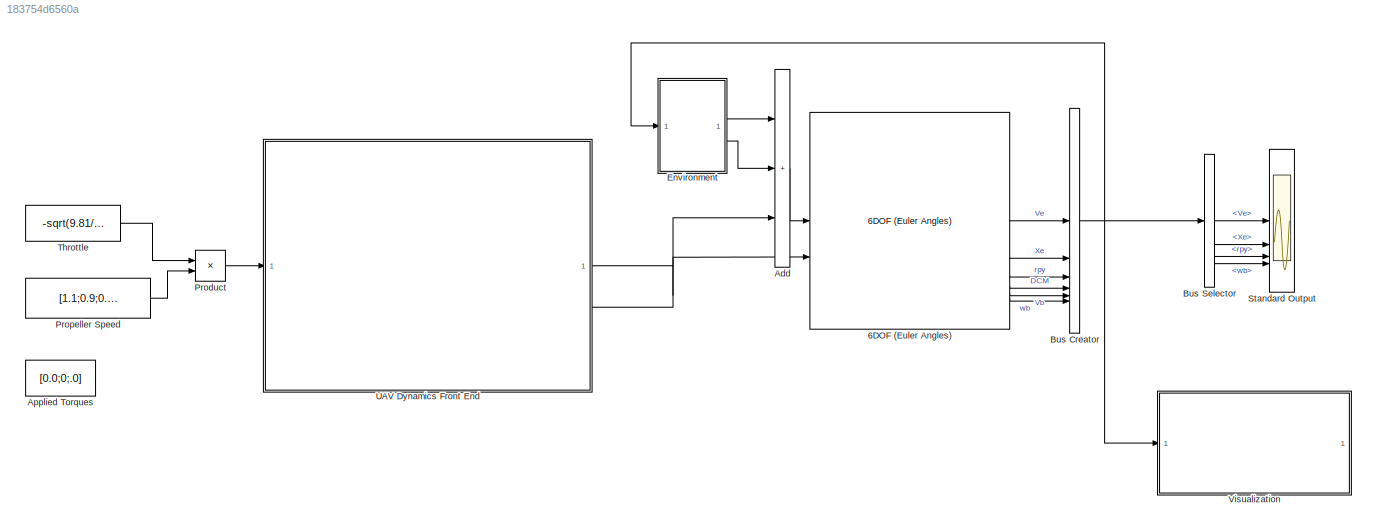
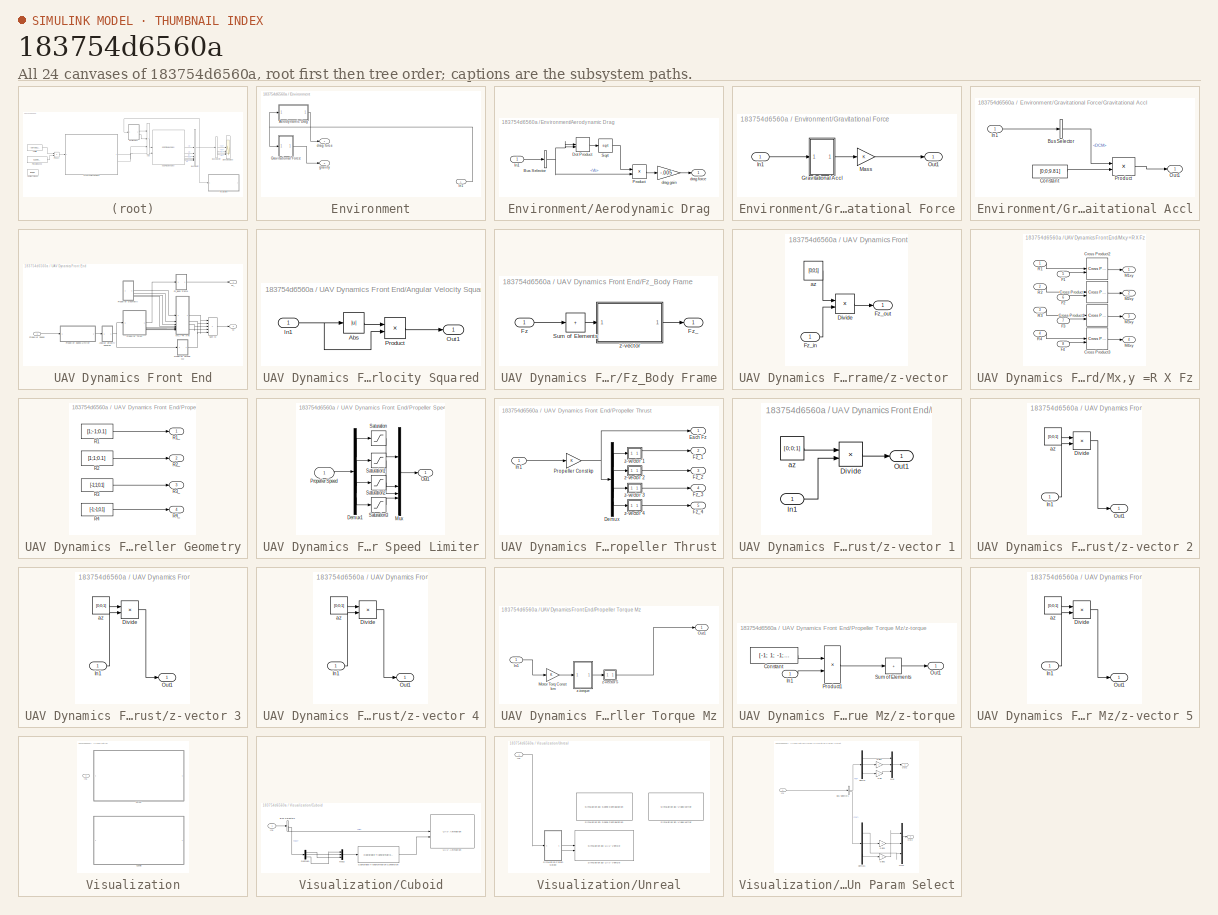
[diagram: thumbnail index - all 24 canvases of the model, root first then tree order]
MODEL slx_183754d6560a
KIND model
CONFIG AbsTol = auto
CONFIG EnableMultiTasking = off
CONFIG FixedStep = auto
CONFIG MaxStep = auto
CONFIG MinStep = auto
CONFIG RelTol = 1e-3
CONFIG SampleTimeConstraint = Unconstrained
CONFIG SolverName = VariableStepAuto
CONFIG StartTime = 0.0
CONFIG StopTime = 10.0
BLOCK [Reference] 6DOF (Euler Angles)  REF=shared6dof/6DOF (Euler Angles)
  LibrarySourceBlock = aerolib6dof2/6DOF (Euler Angles)
  SourceBlock = shared6dof/6DOF (Euler Angles)
  Vm_statename = ''
  aMode = 0
  eul_statename = ''
  mass_f = 2.0
  mass_statename = ''
  pm_statename = ''
  rep = Euler Angles
  vre_flag = on
  xme_statename = ''
BLOCK [Sum] Add
  IconShape = rectangular
  Inputs = +++
BLOCK [Constant] Applied Torques
  Value = [0.0;0;.0]
BLOCK [BusCreator] Bus Creator
  DisplayOption = bar
  InheritFromInputs = on
  Inputs = 6
BLOCK [BusSelector] Bus Selector
  OutputSignals = Ve,Xe,rpy,wb
BLOCK [SubSystem] Environment
BLOCK [SubSystem] Environment/Aerodynamic Drag
BLOCK [BusSelector] Environment/Aerodynamic Drag/Bus Selector
  OutputSignals = Vb
BLOCK [DotProduct] Environment/Aerodynamic Drag/Dot Product
  OutDataTypeStr = Inherit: Inherit via internal rule
BLOCK [Inport] Environment/Aerodynamic Drag/In1
BLOCK [Product] Environment/Aerodynamic Drag/Product
BLOCK [Sqrt] Environment/Aerodynamic Drag/Sqrt
BLOCK [Outport] Environment/Aerodynamic Drag/drag force
BLOCK [Gain] Environment/Aerodynamic Drag/drag gain
  Gain = -.005
BLOCK [SubSystem] Environment/Gravitational Force
BLOCK [SubSystem] Environment/Gravitational Force/Gravitational Accl
BLOCK [BusSelector] Environment/Gravitational Force/Gravitational Accl/Bus Selector
  OutputSignals = DCM
BLOCK [Constant] Environment/Gravitational Force/Gravitational Accl/Constant
  Value = [0;0;9.81]
BLOCK [Inport] Environment/Gravitational Force/Gravitational Accl/In1
BLOCK [Outport] Environment/Gravitational Force/Gravitational Accl/Out1
BLOCK [Product] Environment/Gravitational Force/Gravitational Accl/Product
  Multiplication = Matrix(*)
BLOCK [Inport] Environment/Gravitational Force/In1
BLOCK [Gain] Environment/Gravitational Force/Mass
BLOCK [Outport] Environment/Gravitational Force/Out1
BLOCK [Inport] Environment/In1
BLOCK [Outport] Environment/drag force
BLOCK [Outport] Environment/gravity
  Port = 2
BLOCK [Product] Product
BLOCK [Constant] Propeller Speed
  Value = [1.1;0.9;0.9;1.1]
BLOCK [Scope] Standard Output
  Floating = off
  NumInputPorts = 4
  ScopeSpecificationString = Simulink.scopes.TimeScopeBlockCfg('CurrentConfiguration', extmgr.ConfigurationSet(extmgr.Configuration('Core','General UI',true,'DisplayFullSourceName',false,'ShowMainToolbar',true),extmgr.Configuration('Sources','WiredSimulink',true,'DataLogging',false,'DataLoggingVariableName','ScopeData','DataLoggingLimitDataPoints',false,'DataLoggingMaxPoints','5000','DataLoggingDecimateData',false,'DataLoggin...<+4338ch>
BLOCK [Constant] Throttle
  Value = -sqrt(9.81/4)
BLOCK [SubSystem] UAV Dynamics Front End
BLOCK [SubSystem] UAV Dynamics Front End/Angular Velocity Squared
BLOCK [Abs] UAV Dynamics Front End/Angular Velocity Squared/Abs
  SaturateOnIntegerOverflow = off
BLOCK [Inport] UAV Dynamics Front End/Angular Velocity Squared/In1
BLOCK [Outport] UAV Dynamics Front End/Angular Velocity Squared/Out1
BLOCK [Product] UAV Dynamics Front End/Angular Velocity Squared/Product
BLOCK [Outport] UAV Dynamics Front End/Fz_
BLOCK [SubSystem] UAV Dynamics Front End/Fz_Body Frame
BLOCK [Inport] UAV Dynamics Front End/Fz_Body Frame/Fz
BLOCK [Outport] UAV Dynamics Front End/Fz_Body Frame/Fz_
BLOCK [Sum] UAV Dynamics Front End/Fz_Body Frame/Sum of Elements
  IconShape = rectangular
  Inputs = +
BLOCK [SubSystem] UAV Dynamics Front End/Fz_Body Frame/z-vector 
BLOCK [Product] UAV Dynamics Front End/Fz_Body Frame/z-vector /Divide
  Inputs = **
BLOCK [Inport] UAV Dynamics Front End/Fz_Body Frame/z-vector /Fz_in
BLOCK [Outport] UAV Dynamics Front End/Fz_Body Frame/z-vector /Fz_out
BLOCK [Constant] UAV Dynamics Front End/Fz_Body Frame/z-vector /az
  Value = [0;0;1]
BLOCK [Outport] UAV Dynamics Front End/M
  Port = 2
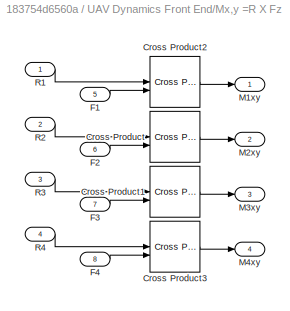
BLOCK [SubSystem] UAV Dynamics Front End/Mx,y =R X Fz
BLOCK [Reference] UAV Dynamics Front End/Mx,y =R X Fz/Cross Product  REF=matrix_library/Cross Product
  SourceBlock = matrix_library/Cross Product
  SourceType = CrossProduct
BLOCK [Reference] UAV Dynamics Front End/Mx,y =R X Fz/Cross Product1  REF=matrix_library/Cross Product
  SourceBlock = matrix_library/Cross Product
  SourceType = CrossProduct
BLOCK [Reference] UAV Dynamics Front End/Mx,y =R X Fz/Cross Product2  REF=matrix_library/Cross Product
  SourceBlock = matrix_library/Cross Product
  SourceType = CrossProduct
BLOCK [Reference] UAV Dynamics Front End/Mx,y =R X Fz/Cross Product3  REF=matrix_library/Cross Product
  SourceBlock = matrix_library/Cross Product
  SourceType = CrossProduct
BLOCK [Inport] UAV Dynamics Front End/Mx,y =R X Fz/F1
  Port = 5
BLOCK [Inport] UAV Dynamics Front End/Mx,y =R X Fz/F2
  Port = 6
BLOCK [Inport] UAV Dynamics Front End/Mx,y =R X Fz/F3
  Port = 7
BLOCK [Inport] UAV Dynamics Front End/Mx,y =R X Fz/F4
  Port = 8
BLOCK [Outport] UAV Dynamics Front End/Mx,y =R X Fz/M1xy
BLOCK [Outport] UAV Dynamics Front End/Mx,y =R X Fz/M2xy
  Port = 2
BLOCK [Outport] UAV Dynamics Front End/Mx,y =R X Fz/M3xy
  Port = 3
BLOCK [Outport] UAV Dynamics Front End/Mx,y =R X Fz/M4xy
  Port = 4
BLOCK [Inport] UAV Dynamics Front End/Mx,y =R X Fz/R1
BLOCK [Inport] UAV Dynamics Front End/Mx,y =R X Fz/R2
  Port = 2
BLOCK [Inport] UAV Dynamics Front End/Mx,y =R X Fz/R3
  Port = 3
BLOCK [Inport] UAV Dynamics Front End/Mx,y =R X Fz/R4
  Port = 4
BLOCK [SubSystem] UAV Dynamics Front End/Propeller Geometry
BLOCK [Constant] UAV Dynamics Front End/Propeller Geometry/R1
  Value = [1;-1;0.1]
BLOCK [Outport] UAV Dynamics Front End/Propeller Geometry/R1_
BLOCK [Constant] UAV Dynamics Front End/Propeller Geometry/R2
  Value = [1;1;0.1]
BLOCK [Outport] UAV Dynamics Front End/Propeller Geometry/R2_
  Port = 2
BLOCK [Constant] UAV Dynamics Front End/Propeller Geometry/R3
  Value = [-1;1;0.1]
BLOCK [Outport] UAV Dynamics Front End/Propeller Geometry/R3_
  Port = 3
BLOCK [Constant] UAV Dynamics Front End/Propeller Geometry/R4
  Value = [-1;-1;0.1]
BLOCK [Outport] UAV Dynamics Front End/Propeller Geometry/R4_
  Port = 4
BLOCK [Inport] UAV Dynamics Front End/Propeller Speed
BLOCK [SubSystem] UAV Dynamics Front End/Propeller Speed Limiter
BLOCK [Demux] UAV Dynamics Front End/Propeller Speed Limiter/Demux1
BLOCK [Mux] UAV Dynamics Front End/Propeller Speed Limiter/Mux
  DisplayOption = bar
BLOCK [Outport] UAV Dynamics Front End/Propeller Speed Limiter/Out1
BLOCK [Inport] UAV Dynamics Front End/Propeller Speed Limiter/Propeller Speed
BLOCK [Saturate] UAV Dynamics Front End/Propeller Speed Limiter/Saturation
  LowerLimit = -300
  UpperLimit = 300
BLOCK [Saturate] UAV Dynamics Front End/Propeller Speed Limiter/Saturation1
  LowerLimit = -300
  UpperLimit = 300
BLOCK [Saturate] UAV Dynamics Front End/Propeller Speed Limiter/Saturation2
  LowerLimit = -300
  UpperLimit = 300
BLOCK [Saturate] UAV Dynamics Front End/Propeller Speed Limiter/Saturation3
  LowerLimit = -300
  UpperLimit = 300
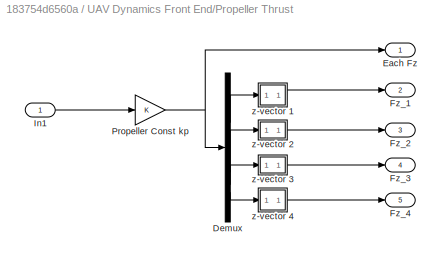
BLOCK [SubSystem] UAV Dynamics Front End/Propeller Thrust
BLOCK [Demux] UAV Dynamics Front End/Propeller Thrust/Demux
BLOCK [Outport] UAV Dynamics Front End/Propeller Thrust/Each Fz
BLOCK [Outport] UAV Dynamics Front End/Propeller Thrust/Fz_1
  Port = 2
BLOCK [Outport] UAV Dynamics Front End/Propeller Thrust/Fz_2
  Port = 3
BLOCK [Outport] UAV Dynamics Front End/Propeller Thrust/Fz_3
  Port = 4
BLOCK [Outport] UAV Dynamics Front End/Propeller Thrust/Fz_4
  Port = 5
BLOCK [Inport] UAV Dynamics Front End/Propeller Thrust/In1
BLOCK [Gain] UAV Dynamics Front End/Propeller Thrust/Propeller Const kp
BLOCK [SubSystem] UAV Dynamics Front End/Propeller Thrust/z-vector 1
BLOCK [Product] UAV Dynamics Front End/Propeller Thrust/z-vector 1/Divide
  Inputs = **
BLOCK [Inport] UAV Dynamics Front End/Propeller Thrust/z-vector 1/In1
BLOCK [Outport] UAV Dynamics Front End/Propeller Thrust/z-vector 1/Out1
BLOCK [Constant] UAV Dynamics Front End/Propeller Thrust/z-vector 1/az
  Value = [0;0;1]
BLOCK [SubSystem] UAV Dynamics Front End/Propeller Thrust/z-vector 2
BLOCK [Product] UAV Dynamics Front End/Propeller Thrust/z-vector 2/Divide
  Inputs = **
BLOCK [Inport] UAV Dynamics Front End/Propeller Thrust/z-vector 2/In1
BLOCK [Outport] UAV Dynamics Front End/Propeller Thrust/z-vector 2/Out1
BLOCK [Constant] UAV Dynamics Front End/Propeller Thrust/z-vector 2/az
  Value = [0;0;1]
BLOCK [SubSystem] UAV Dynamics Front End/Propeller Thrust/z-vector 3
BLOCK [Product] UAV Dynamics Front End/Propeller Thrust/z-vector 3/Divide
  Inputs = **
BLOCK [Inport] UAV Dynamics Front End/Propeller Thrust/z-vector 3/In1
BLOCK [Outport] UAV Dynamics Front End/Propeller Thrust/z-vector 3/Out1
BLOCK [Constant] UAV Dynamics Front End/Propeller Thrust/z-vector 3/az
  Value = [0;0;1]
BLOCK [SubSystem] UAV Dynamics Front End/Propeller Thrust/z-vector 4
BLOCK [Product] UAV Dynamics Front End/Propeller Thrust/z-vector 4/Divide
  Inputs = **
BLOCK [Inport] UAV Dynamics Front End/Propeller Thrust/z-vector 4/In1
BLOCK [Outport] UAV Dynamics Front End/Propeller Thrust/z-vector 4/Out1
BLOCK [Constant] UAV Dynamics Front End/Propeller Thrust/z-vector 4/az
  Value = [0;0;1]
BLOCK [SubSystem] UAV Dynamics Front End/Propeller Torque Mz
BLOCK [Inport] UAV Dynamics Front End/Propeller Torque Mz/In1
BLOCK [Gain] UAV Dynamics Front End/Propeller Torque Mz/Motor Torq Const km
BLOCK [Outport] UAV Dynamics Front End/Propeller Torque Mz/Out1
BLOCK [SubSystem] UAV Dynamics Front End/Propeller Torque Mz/z-torque
BLOCK [Constant] UAV Dynamics Front End/Propeller Torque Mz/z-torque/Constant
  Value = [-1; 1; -1; 1]
BLOCK [Inport] UAV Dynamics Front End/Propeller Torque Mz/z-torque/In1
BLOCK [Outport] UAV Dynamics Front End/Propeller Torque Mz/z-torque/Out1
BLOCK [Product] UAV Dynamics Front End/Propeller Torque Mz/z-torque/Product1
BLOCK [Sum] UAV Dynamics Front End/Propeller Torque Mz/z-torque/Sum of Elements
  IconShape = rectangular
  Inputs = +
BLOCK [SubSystem] UAV Dynamics Front End/Propeller Torque Mz/z-vector 5
BLOCK [Product] UAV Dynamics Front End/Propeller Torque Mz/z-vector 5/Divide
  Inputs = **
BLOCK [Inport] UAV Dynamics Front End/Propeller Torque Mz/z-vector 5/In1
BLOCK [Outport] UAV Dynamics Front End/Propeller Torque Mz/z-vector 5/Out1
BLOCK [Constant] UAV Dynamics Front End/Propeller Torque Mz/z-vector 5/az
  Value = [0;0;1]
BLOCK [Sum] UAV Dynamics Front End/Sum M
  IconShape = rectangular
  Inputs = +++++
BLOCK [SubSystem] Visualization
  LabelModeActiveChoice = Subsystem
  Variant = on
  VariantControlMode = label
BLOCK [SubSystem] Visualization/Cuboid
  VariantControl = Subsystem1
BLOCK [BusSelector] Visualization/Cuboid/Bus Selector1
  OutputSignals = Xe,rpy
BLOCK [Reference] Visualization/Cuboid/Coordinate Transformation Conversion  REF=robotcorelib/Coordinate Transformation Conversion
  SourceBlock = robotcorelib/Coordinate Transformation Conversion
  SourceType = robotics.slcore.internal.block.CoordinateTransformationConversion
BLOCK [Demux] Visualization/Cuboid/Demux1
  Outputs = 3
BLOCK [Inport] Visualization/Cuboid/In1
BLOCK [Mux] Visualization/Cuboid/Mux2
  DisplayOption = bar
  Inputs = 3
BLOCK [Reference] Visualization/Cuboid/UAV Animation  REF=uavutilslib/UAV Animation
  SourceBlock = uavutilslib/UAV Animation
  SourceType = uav.sluav.internal.system.UAVAnimation
BLOCK [Inport] Visualization/In1
BLOCK [SubSystem] Visualization/Unreal
  VariantControl = Subsystem
BLOCK [Inport] Visualization/Unreal/In1
BLOCK [Reference] Visualization/Unreal/Simulation 3D Scene Configuration  REF=sim3dlib/Simulation 3D Scene Configuration
  LibrarySourceBlock = uavsim3dlib/Simulation 3D Scene Configuration
  Priority = 0
  SourceBlock = sim3dlib/Simulation 3D Scene Configuration
  SourceType = Simulation 3D Scene Configuration
BLOCK [Reference] Visualization/Unreal/Simulation 3D UAV Vehicle  REF=uavsim3dlib/Simulation 3D UAV Vehicle
  Priority = -1
  SourceBlock = uavsim3dlib/Simulation 3D UAV Vehicle
  SourceType = Simulation 3D UAV Vehicle
BLOCK [Reference] Visualization/Unreal/Simulation 3D Video Writer  REF=sim3dlib/Simulation 3D Video Writer
  Commented = on
  LibrarySourceBlock = sl3dlib/Simulation 3D/Utilities/Simulation 3D Video Writer
  Priority = 1
  SourceBlock = sim3dlib/Simulation 3D Video Writer
  SourceType = Simulation3DVideoWriterSystem
BLOCK [SubSystem] Visualization/Unreal/Simulation Param Select
BLOCK [BusSelector] Visualization/Unreal/Simulation Param Select/Bus Selector1
  OutputSignals = Xe,rpy
BLOCK [Demux] Visualization/Unreal/Simulation Param Select/Demux
  Outputs = 3
BLOCK [Demux] Visualization/Unreal/Simulation Param Select/Demux1
  Outputs = 3
BLOCK [Gain] Visualization/Unreal/Simulation Param Select/Gain
  Gain = -1
BLOCK [Gain] Visualization/Unreal/Simulation Param Select/Gain1
  Gain = -1
BLOCK [Gain] Visualization/Unreal/Simulation Param Select/Gain2
  Gain = -1
BLOCK [Gain] Visualization/Unreal/Simulation Param Select/Gain3
  Gain = -1
BLOCK [Inport] Visualization/Unreal/Simulation Param Select/In1
BLOCK [Mux] Visualization/Unreal/Simulation Param Select/Mux
  DisplayOption = bar
  Inputs = 3
BLOCK [Mux] Visualization/Unreal/Simulation Param Select/Mux1
  DisplayOption = bar
  Inputs = 3
BLOCK [Outport] Visualization/Unreal/Simulation Param Select/Out1
BLOCK [Outport] Visualization/Unreal/Simulation Param Select/Out2
  Port = 2
LINE 6DOF (Euler Angles):1 -> Bus Creator:1
LINE 6DOF (Euler Angles):2 -> Bus Creator:2
LINE 6DOF (Euler Angles):3 -> Bus Creator:3
LINE 6DOF (Euler Angles):4 -> Bus Creator:4
LINE 6DOF (Euler Angles):5 -> Bus Creator:5
LINE 6DOF (Euler Angles):6 -> Bus Creator:6
LINE Add:1 -> 6DOF (Euler Angles):1
NET Bus Creator:1 -> Bus Selector:1, Environment:1, Visualization:1
LINE Bus Selector:1 -> Standard Output:1
LINE Bus Selector:2 -> Standard Output:2
LINE Bus Selector:3 -> Standard Output:3
LINE Bus Selector:4 -> Standard Output:4
NET Environment/Aerodynamic Drag/Bus Selector:1 -> Environment/Aerodynamic Drag/Dot Product:1, Environment/Aerodynamic Drag/Dot Product:2, Environment/Aerodynamic Drag/Product:2
LINE Environment/Aerodynamic Drag/Dot Product:1 -> Environment/Aerodynamic Drag/Sqrt:1
LINE Environment/Aerodynamic Drag/In1:1 -> Environment/Aerodynamic Drag/Bus Selector:1
LINE Environment/Aerodynamic Drag/Product:1 -> Environment/Aerodynamic Drag/drag gain:1
LINE Environment/Aerodynamic Drag/Sqrt:1 -> Environment/Aerodynamic Drag/Product:1
LINE Environment/Aerodynamic Drag/drag gain:1 -> Environment/Aerodynamic Drag/drag force:1
LINE Environment/Aerodynamic Drag:1 -> Environment/drag force:1
LINE Environment/Gravitational Force/Gravitational Accl/Bus Selector:1 -> Environment/Gravitational Force/Gravitational Accl/Product:1
LINE Environment/Gravitational Force/Gravitational Accl/Constant:1 -> Environment/Gravitational Force/Gravitational Accl/Product:2
LINE Environment/Gravitational Force/Gravitational Accl/In1:1 -> Environment/Gravitational Force/Gravitational Accl/Bus Selector:1
LINE Environment/Gravitational Force/Gravitational Accl/Product:1 -> Environment/Gravitational Force/Gravitational Accl/Out1:1
LINE Environment/Gravitational Force/Gravitational Accl:1 -> Environment/Gravitational Force/Mass:1
LINE Environment/Gravitational Force/In1:1 -> Environment/Gravitational Force/Gravitational Accl:1
LINE Environment/Gravitational Force/Mass:1 -> Environment/Gravitational Force/Out1:1
LINE Environment/Gravitational Force:1 -> Environment/gravity:1
NET Environment/In1:1 -> Environment/Aerodynamic Drag:1, Environment/Gravitational Force:1
LINE Environment:1 -> Add:1
LINE Environment:2 -> Add:2
LINE Product:1 -> UAV Dynamics Front End:1
LINE Propeller Speed:1 -> Product:2
LINE Throttle:1 -> Product:1
LINE UAV Dynamics Front End/Angular Velocity Squared/Abs:1 -> UAV Dynamics Front End/Angular Velocity Squared/Product:1
NET UAV Dynamics Front End/Angular Velocity Squared/In1:1 -> UAV Dynamics Front End/Angular Velocity Squared/Abs:1, UAV Dynamics Front End/Angular Velocity Squared/Product:2
LINE UAV Dynamics Front End/Angular Velocity Squared/Product:1 -> UAV Dynamics Front End/Angular Velocity Squared/Out1:1
NET UAV Dynamics Front End/Angular Velocity Squared:1 -> UAV Dynamics Front End/Propeller Thrust:1, UAV Dynamics Front End/Propeller Torque Mz:1
LINE UAV Dynamics Front End/Fz_Body Frame/Fz:1 -> UAV Dynamics Front End/Fz_Body Frame/Sum of Elements:1
LINE UAV Dynamics Front End/Fz_Body Frame/Sum of Elements:1 -> UAV Dynamics Front End/Fz_Body Frame/z-vector :1
LINE UAV Dynamics Front End/Fz_Body Frame/z-vector /Divide:1 -> UAV Dynamics Front End/Fz_Body Frame/z-vector /Fz_out:1
LINE UAV Dynamics Front End/Fz_Body Frame/z-vector /Fz_in:1 -> UAV Dynamics Front End/Fz_Body Frame/z-vector /Divide:2
LINE UAV Dynamics Front End/Fz_Body Frame/z-vector /az:1 -> UAV Dynamics Front End/Fz_Body Frame/z-vector /Divide:1
LINE UAV Dynamics Front End/Fz_Body Frame/z-vector :1 -> UAV Dynamics Front End/Fz_Body Frame/Fz_:1
LINE UAV Dynamics Front End/Fz_Body Frame:1 -> UAV Dynamics Front End/Fz_:1
LINE UAV Dynamics Front End/Mx,y =R X Fz/Cross Product1:1 -> UAV Dynamics Front End/Mx,y =R X Fz/M3xy:1
LINE UAV Dynamics Front End/Mx,y =R X Fz/Cross Product2:1 -> UAV Dynamics Front End/Mx,y =R X Fz/M1xy:1
LINE UAV Dynamics Front End/Mx,y =R X Fz/Cross Product3:1 -> UAV Dynamics Front End/Mx,y =R X Fz/M4xy:1
LINE UAV Dynamics Front End/Mx,y =R X Fz/Cross Product:1 -> UAV Dynamics Front End/Mx,y =R X Fz/M2xy:1
LINE UAV Dynamics Front End/Mx,y =R X Fz/F1:1 -> UAV Dynamics Front End/Mx,y =R X Fz/Cross Product2:2
LINE UAV Dynamics Front End/Mx,y =R X Fz/F2:1 -> UAV Dynamics Front End/Mx,y =R X Fz/Cross Product:2
LINE UAV Dynamics Front End/Mx,y =R X Fz/F3:1 -> UAV Dynamics Front End/Mx,y =R X Fz/Cross Product1:2
LINE UAV Dynamics Front End/Mx,y =R X Fz/F4:1 -> UAV Dynamics Front End/Mx,y =R X Fz/Cross Product3:2
LINE UAV Dynamics Front End/Mx,y =R X Fz/R1:1 -> UAV Dynamics Front End/Mx,y =R X Fz/Cross Product2:1
LINE UAV Dynamics Front End/Mx,y =R X Fz/R2:1 -> UAV Dynamics Front End/Mx,y =R X Fz/Cross Product:1
LINE UAV Dynamics Front End/Mx,y =R X Fz/R3:1 -> UAV Dynamics Front End/Mx,y =R X Fz/Cross Product1:1
LINE UAV Dynamics Front End/Mx,y =R X Fz/R4:1 -> UAV Dynamics Front End/Mx,y =R X Fz/Cross Product3:1
LINE UAV Dynamics Front End/Mx,y =R X Fz:1 -> UAV Dynamics Front End/Sum M:1
LINE UAV Dynamics Front End/Mx,y =R X Fz:2 -> UAV Dynamics Front End/Sum M:2
LINE UAV Dynamics Front End/Mx,y =R X Fz:3 -> UAV Dynamics Front End/Sum M:3
LINE UAV Dynamics Front End/Mx,y =R X Fz:4 -> UAV Dynamics Front End/Sum M:4
LINE UAV Dynamics Front End/Propeller Geometry/R1:1 -> UAV Dynamics Front End/Propeller Geometry/R1_:1
LINE UAV Dynamics Front End/Propeller Geometry/R2:1 -> UAV Dynamics Front End/Propeller Geometry/R2_:1
LINE UAV Dynamics Front End/Propeller Geometry/R3:1 -> UAV Dynamics Front End/Propeller Geometry/R3_:1
LINE UAV Dynamics Front End/Propeller Geometry/R4:1 -> UAV Dynamics Front End/Propeller Geometry/R4_:1
LINE UAV Dynamics Front End/Propeller Geometry:1 -> UAV Dynamics Front End/Mx,y =R X Fz:1
LINE UAV Dynamics Front End/Propeller Geometry:2 -> UAV Dynamics Front End/Mx,y =R X Fz:2
LINE UAV Dynamics Front End/Propeller Geometry:3 -> UAV Dynamics Front End/Mx,y =R X Fz:3
LINE UAV Dynamics Front End/Propeller Geometry:4 -> UAV Dynamics Front End/Mx,y =R X Fz:4
LINE UAV Dynamics Front End/Propeller Speed Limiter/Demux1:1 -> UAV Dynamics Front End/Propeller Speed Limiter/Saturation:1
LINE UAV Dynamics Front End/Propeller Speed Limiter/Demux1:2 -> UAV Dynamics Front End/Propeller Speed Limiter/Saturation1:1
LINE UAV Dynamics Front End/Propeller Speed Limiter/Demux1:3 -> UAV Dynamics Front End/Propeller Speed Limiter/Saturation2:1
LINE UAV Dynamics Front End/Propeller Speed Limiter/Demux1:4 -> UAV Dynamics Front End/Propeller Speed Limiter/Saturation3:1
LINE UAV Dynamics Front End/Propeller Speed Limiter/Mux:1 -> UAV Dynamics Front End/Propeller Speed Limiter/Out1:1
LINE UAV Dynamics Front End/Propeller Speed Limiter/Propeller Speed:1 -> UAV Dynamics Front End/Propeller Speed Limiter/Demux1:1
LINE UAV Dynamics Front End/Propeller Speed Limiter/Saturation1:1 -> UAV Dynamics Front End/Propeller Speed Limiter/Mux:2
LINE UAV Dynamics Front End/Propeller Speed Limiter/Saturation2:1 -> UAV Dynamics Front End/Propeller Speed Limiter/Mux:3
LINE UAV Dynamics Front End/Propeller Speed Limiter/Saturation3:1 -> UAV Dynamics Front End/Propeller Speed Limiter/Mux:4
LINE UAV Dynamics Front End/Propeller Speed Limiter/Saturation:1 -> UAV Dynamics Front End/Propeller Speed Limiter/Mux:1
LINE UAV Dynamics Front End/Propeller Speed Limiter:1 -> UAV Dynamics Front End/Angular Velocity Squared:1
LINE UAV Dynamics Front End/Propeller Speed:1 -> UAV Dynamics Front End/Propeller Speed Limiter:1
LINE UAV Dynamics Front End/Propeller Thrust/Demux:1 -> UAV Dynamics Front End/Propeller Thrust/z-vector 1:1
LINE UAV Dynamics Front End/Propeller Thrust/Demux:2 -> UAV Dynamics Front End/Propeller Thrust/z-vector 2:1
LINE UAV Dynamics Front End/Propeller Thrust/Demux:3 -> UAV Dynamics Front End/Propeller Thrust/z-vector 3:1
LINE UAV Dynamics Front End/Propeller Thrust/Demux:4 -> UAV Dynamics Front End/Propeller Thrust/z-vector 4:1
LINE UAV Dynamics Front End/Propeller Thrust/In1:1 -> UAV Dynamics Front End/Propeller Thrust/Propeller Const kp:1
NET UAV Dynamics Front End/Propeller Thrust/Propeller Const kp:1 -> UAV Dynamics Front End/Propeller Thrust/Demux:1, UAV Dynamics Front End/Propeller Thrust/Each Fz:1
LINE UAV Dynamics Front End/Propeller Thrust/z-vector 1/Divide:1 -> UAV Dynamics Front End/Propeller Thrust/z-vector 1/Out1:1
LINE UAV Dynamics Front End/Propeller Thrust/z-vector 1/In1:1 -> UAV Dynamics Front End/Propeller Thrust/z-vector 1/Divide:2
LINE UAV Dynamics Front End/Propeller Thrust/z-vector 1/az:1 -> UAV Dynamics Front End/Propeller Thrust/z-vector 1/Divide:1
LINE UAV Dynamics Front End/Propeller Thrust/z-vector 1:1 -> UAV Dynamics Front End/Propeller Thrust/Fz_1:1
LINE UAV Dynamics Front End/Propeller Thrust/z-vector 2/Divide:1 -> UAV Dynamics Front End/Propeller Thrust/z-vector 2/Out1:1
LINE UAV Dynamics Front End/Propeller Thrust/z-vector 2/In1:1 -> UAV Dynamics Front End/Propeller Thrust/z-vector 2/Divide:2
LINE UAV Dynamics Front End/Propeller Thrust/z-vector 2/az:1 -> UAV Dynamics Front End/Propeller Thrust/z-vector 2/Divide:1
LINE UAV Dynamics Front End/Propeller Thrust/z-vector 2:1 -> UAV Dynamics Front End/Propeller Thrust/Fz_2:1
LINE UAV Dynamics Front End/Propeller Thrust/z-vector 3/Divide:1 -> UAV Dynamics Front End/Propeller Thrust/z-vector 3/Out1:1
LINE UAV Dynamics Front End/Propeller Thrust/z-vector 3/In1:1 -> UAV Dynamics Front End/Propeller Thrust/z-vector 3/Divide:2
LINE UAV Dynamics Front End/Propeller Thrust/z-vector 3/az:1 -> UAV Dynamics Front End/Propeller Thrust/z-vector 3/Divide:1
LINE UAV Dynamics Front End/Propeller Thrust/z-vector 3:1 -> UAV Dynamics Front End/Propeller Thrust/Fz_3:1
LINE UAV Dynamics Front End/Propeller Thrust/z-vector 4/Divide:1 -> UAV Dynamics Front End/Propeller Thrust/z-vector 4/Out1:1
LINE UAV Dynamics Front End/Propeller Thrust/z-vector 4/In1:1 -> UAV Dynamics Front End/Propeller Thrust/z-vector 4/Divide:2
LINE UAV Dynamics Front End/Propeller Thrust/z-vector 4/az:1 -> UAV Dynamics Front End/Propeller Thrust/z-vector 4/Divide:1
LINE UAV Dynamics Front End/Propeller Thrust/z-vector 4:1 -> UAV Dynamics Front End/Propeller Thrust/Fz_4:1
LINE UAV Dynamics Front End/Propeller Thrust:1 -> UAV Dynamics Front End/Fz_Body Frame:1
LINE UAV Dynamics Front End/Propeller Thrust:2 -> UAV Dynamics Front End/Mx,y =R X Fz:5
LINE UAV Dynamics Front End/Propeller Thrust:3 -> UAV Dynamics Front End/Mx,y =R X Fz:6
LINE UAV Dynamics Front End/Propeller Thrust:4 -> UAV Dynamics Front End/Mx,y =R X Fz:7
LINE UAV Dynamics Front End/Propeller Thrust:5 -> UAV Dynamics Front End/Mx,y =R X Fz:8
LINE UAV Dynamics Front End/Propeller Torque Mz/In1:1 -> UAV Dynamics Front End/Propeller Torque Mz/Motor Torq Const km:1
LINE UAV Dynamics Front End/Propeller Torque Mz/Motor Torq Const km:1 -> UAV Dynamics Front End/Propeller Torque Mz/z-torque:1
LINE UAV Dynamics Front End/Propeller Torque Mz/z-torque/Constant:1 -> UAV Dynamics Front End/Propeller Torque Mz/z-torque/Product1:1
LINE UAV Dynamics Front End/Propeller Torque Mz/z-torque/In1:1 -> UAV Dynamics Front End/Propeller Torque Mz/z-torque/Product1:2
LINE UAV Dynamics Front End/Propeller Torque Mz/z-torque/Product1:1 -> UAV Dynamics Front End/Propeller Torque Mz/z-torque/Sum of Elements:1
LINE UAV Dynamics Front End/Propeller Torque Mz/z-torque/Sum of Elements:1 -> UAV Dynamics Front End/Propeller Torque Mz/z-torque/Out1:1
LINE UAV Dynamics Front End/Propeller Torque Mz/z-torque:1 -> UAV Dynamics Front End/Propeller Torque Mz/z-vector 5:1
LINE UAV Dynamics Front End/Propeller Torque Mz/z-vector 5/Divide:1 -> UAV Dynamics Front End/Propeller Torque Mz/z-vector 5/Out1:1
LINE UAV Dynamics Front End/Propeller Torque Mz/z-vector 5/In1:1 -> UAV Dynamics Front End/Propeller Torque Mz/z-vector 5/Divide:2
LINE UAV Dynamics Front End/Propeller Torque Mz/z-vector 5/az:1 -> UAV Dynamics Front End/Propeller Torque Mz/z-vector 5/Divide:1
LINE UAV Dynamics Front End/Propeller Torque Mz/z-vector 5:1 -> UAV Dynamics Front End/Propeller Torque Mz/Out1:1
LINE UAV Dynamics Front End/Propeller Torque Mz:1 -> UAV Dynamics Front End/Sum M:5
LINE UAV Dynamics Front End/Sum M:1 -> UAV Dynamics Front End/M:1
LINE UAV Dynamics Front End:1 -> Add:3
LINE UAV Dynamics Front End:2 -> 6DOF (Euler Angles):2
LINE Visualization/Cuboid/Bus Selector1:1 -> Visualization/Cuboid/UAV Animation:1
LINE Visualization/Cuboid/Bus Selector1:2 -> Visualization/Cuboid/Demux1:1
LINE Visualization/Cuboid/Coordinate Transformation Conversion:1 -> Visualization/Cuboid/UAV Animation:2
LINE Visualization/Cuboid/Demux1:1 -> Visualization/Cuboid/Mux2:3
LINE Visualization/Cuboid/Demux1:2 -> Visualization/Cuboid/Mux2:2
LINE Visualization/Cuboid/Demux1:3 -> Visualization/Cuboid/Mux2:1
LINE Visualization/Cuboid/In1:1 -> Visualization/Cuboid/Bus Selector1:1
LINE Visualization/Cuboid/Mux2:1 -> Visualization/Cuboid/Coordinate Transformation Conversion:1
LINE Visualization/Unreal/In1:1 -> Visualization/Unreal/Simulation Param Select:1
LINE Visualization/Unreal/Simulation Param Select/Bus Selector1:1 -> Visualization/Unreal/Simulation Param Select/Demux:1
LINE Visualization/Unreal/Simulation Param Select/Bus Selector1:2 -> Visualization/Unreal/Simulation Param Select/Demux1:1
LINE Visualization/Unreal/Simulation Param Select/Demux1:1 -> Visualization/Unreal/Simulation Param Select/Mux1:3
LINE Visualization/Unreal/Simulation Param Select/Demux1:2 -> Visualization/Unreal/Simulation Param Select/Gain3:1
LINE Visualization/Unreal/Simulation Param Select/Demux1:3 -> Visualization/Unreal/Simulation Param Select/Gain2:1
LINE Visualization/Unreal/Simulation Param Select/Demux:1 -> Visualization/Unreal/Simulation Param Select/Mux:1
LINE Visualization/Unreal/Simulation Param Select/Demux:2 -> Visualization/Unreal/Simulation Param Select/Gain1:1
LINE Visualization/Unreal/Simulation Param Select/Demux:3 -> Visualization/Unreal/Simulation Param Select/Gain:1
LINE Visualization/Unreal/Simulation Param Select/Gain1:1 -> Visualization/Unreal/Simulation Param Select/Mux:2
LINE Visualization/Unreal/Simulation Param Select/Gain2:1 -> Visualization/Unreal/Simulation Param Select/Mux1:1
LINE Visualization/Unreal/Simulation Param Select/Gain3:1 -> Visualization/Unreal/Simulation Param Select/Mux1:2
LINE Visualization/Unreal/Simulation Param Select/Gain:1 -> Visualization/Unreal/Simulation Param Select/Mux:3
LINE Visualization/Unreal/Simulation Param Select/In1:1 -> Visualization/Unreal/Simulation Param Select/Bus Selector1:1
LINE Visualization/Unreal/Simulation Param Select/Mux1:1 -> Visualization/Unreal/Simulation Param Select/Out2:1
LINE Visualization/Unreal/Simulation Param Select/Mux:1 -> Visualization/Unreal/Simulation Param Select/Out1:1
LINE Visualization/Unreal/Simulation Param Select:1 -> Visualization/Unreal/Simulation 3D UAV Vehicle:1
LINE Visualization/Unreal/Simulation Param Select:2 -> Visualization/Unreal/Simulation 3D UAV Vehicle:2
note: NET lines group one-source signal fan-out (src -> all destinations, sorted); 1:1 wires keep LINE
